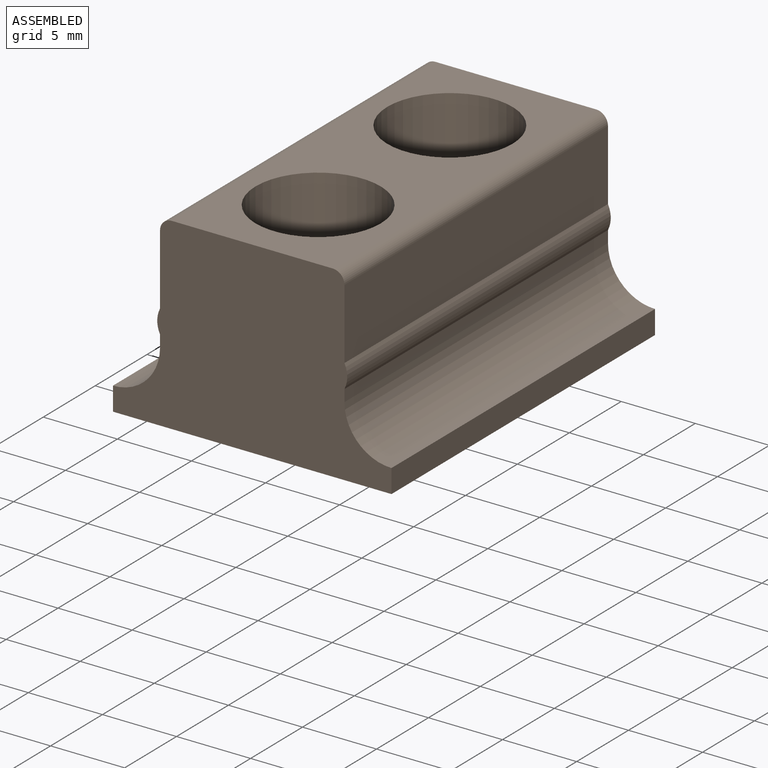
[diagram: assembled view]
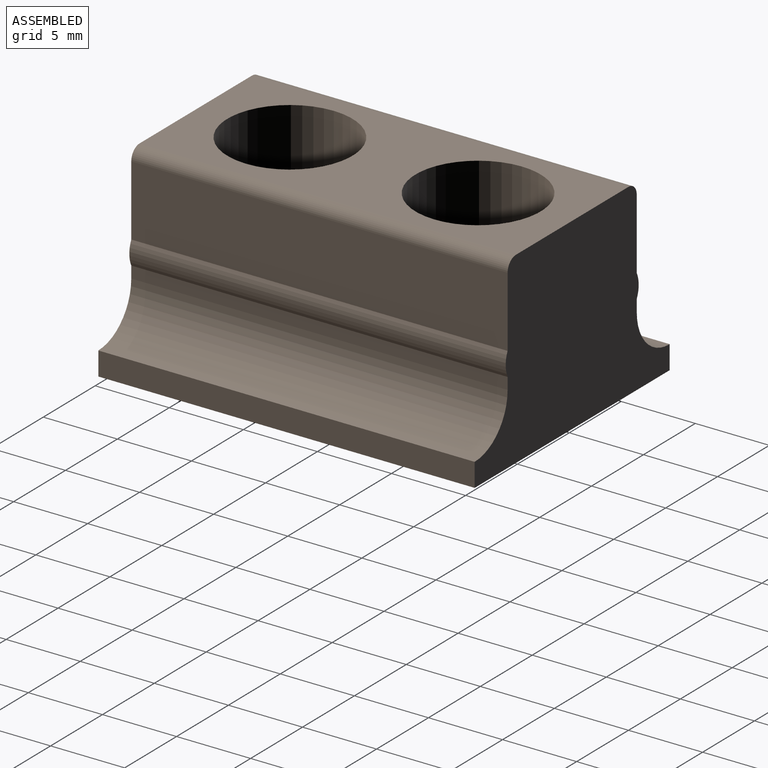
[diagram: assembled view, second angle]
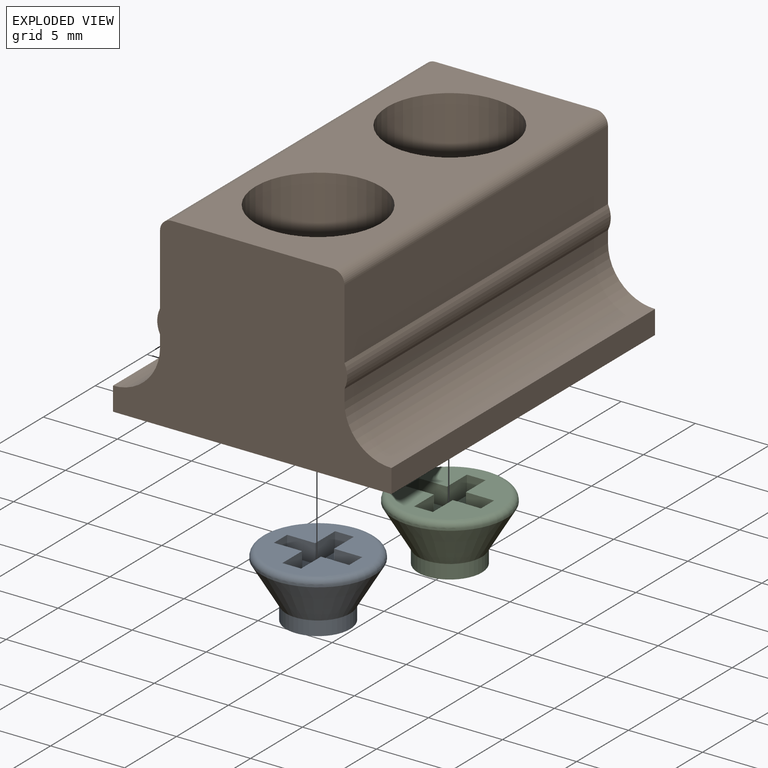
[diagram: exploded view]
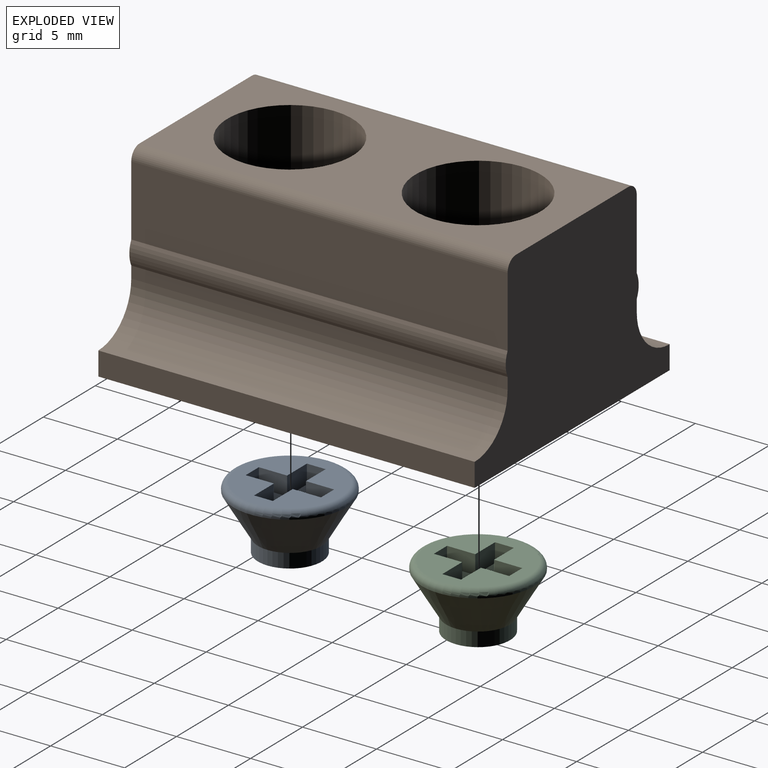
[diagram: exploded view, second angle]
ASSEMBLY  parts=3 mates=2
PART A: 19 faces, bbox 8.2x8.2x4.3 mm
  f0: plane 6.83x6.83mm, normal (0,0,1), area 25.3mm2, adj f5,f6,f7,f8,f9,f10,f11,f12
  f1: plane 4.32x4.32mm, normal (0,0,-1), area 14.6mm2, adj f2
  f2: cylinder r=2.16mm len=4.32mm, axis (0,0,-1), area 12.9mm2, adj f1,f3
  f3: cone r=3.81mm half-angle=30.6deg, axis (0,0,1), area 60.9mm2, adj f2,f4
  f4: cylinder r=3.81mm len=7.62mm, axis (0,0,-1), area 2.7mm2, adj f3,f18
  f5: plane 1.91x1.27mm, normal (1,0,0), area 2.4mm2, adj f0,f6,f16,f17
  f6: plane 1.91x1.27mm, normal (0,-1,0), area 2.4mm2, adj f0,f5,f7,f17
  f7: plane 1.27x1.27mm, normal (1,0,0), area 1.6mm2, adj f0,f6,f8,f17
  f8: plane 1.91x1.27mm, normal (0,1,0), area 2.4mm2, adj f0,f7,f9,f17
  f9: plane 1.91x1.27mm, normal (1,0,0), area 2.4mm2, adj f0,f8,f10,f17
  f10: plane 1.27x1.27mm, normal (0,1,0), area 1.6mm2, adj f0,f9,f11,f17
  f11: plane 1.91x1.27mm, normal (-1,0,0), area 2.4mm2, adj f0,f10,f12,f17
  f12: plane 1.91x1.27mm, normal (0,1,0), area 2.4mm2, adj f0,f11,f13,f17
  f13: plane 1.27x1.27mm, normal (-1,0,0), area 1.6mm2, adj f0,f12,f14,f17
  f14: plane 1.91x1.27mm, normal (0,-1,0), area 2.4mm2, adj f0,f13,f15,f17
  f15: plane 1.91x1.27mm, normal (-1,0,0), area 2.4mm2, adj f0,f14,f16,f17
  f16: plane 1.27x1.27mm, normal (0,-1,0), area 1.6mm2, adj f0,f5,f15,f17
  f17: plane 5.08x5.08mm, normal (0,0,1), area 11.3mm2, adj f5,f6,f7,f8,f9,f10,f11,f12
  f18: torus R=3.41mm, axis (0,0,-1), area 14.4mm2, adj f0,f4
PART B: 22 faces, bbox 18.8x25.4x12.7 mm
  f0: cylinder r=2.29mm len=4.57mm, axis (0,0,1), area 17.3mm2, adj f1,f12
  f1: cone r=4.23mm half-angle=28.6deg, axis (0,0,1), area 82.9mm2, adj f0,f2
  f2: cylinder r=4.23mm len=8.45mm, axis (0,0,1), area 210.7mm2, adj f1,f6
  f3: plane 25.4x0.79mm, normal (1,0,0), area 20.2mm2, adj f4,f14,f15,f16
  f4: cylinder r=1.77mm len=25.4mm, axis (0,1,0), area 41.8mm2, adj f3,f5,f15,f16
  f5: plane 25.4x4.76mm, normal (1,0,0), area 121mm2, adj f4,f15,f16,f20
  f6: plane 25.4x10.86mm, normal (0,0,1), area 163.6mm2, adj f2,f15,f16,f19,f20,f21
  f7: plane 25.4x4.76mm, normal (-1,0,0), area 121mm2, adj f8,f15,f16,f21
  f8: cylinder r=1.77mm len=25.4mm, axis (0,1,0), area 41.8mm2, adj f7,f9,f15,f16
  f9: plane 25.4x0.79mm, normal (-1,0,0), area 20.2mm2, adj f8,f10,f15,f16
  f10: cylinder r=3.17mm len=25.4mm, axis (0,1,0), area 126.7mm2, adj f9,f11,f15,f16
  f11: plane 25.4x1.59mm, normal (-1,0,0), area 40.3mm2, adj f10,f12,f15,f16
  f12: plane 25.4x18.8mm, normal (0,0,-1), area 444.6mm2, adj f0,f11,f13,f15,f16,f17
  f13: plane 25.4x1.59mm, normal (1,0,0), area 40.3mm2, adj f12,f14,f15,f16
  f14: cylinder r=3.17mm len=25.4mm, axis (0,1,0), area 126.7mm2, adj f3,f13,f15,f16
  f15: plane 18.8x12.7mm, normal (0,-1,0), area 172.6mm2, adj f3,f4,f5,f6,f7,f8,f9,f10
  f16: plane 18.8x12.7mm, normal (0,1,0), area 172.6mm2, adj f3,f4,f5,f6,f7,f8,f9,f10
  f17: cylinder r=2.29mm len=4.57mm, axis (0,0,1), area 17.3mm2, adj f12,f18
  f18: cone r=4.23mm half-angle=28.6deg, axis (0,0,1), area 82.9mm2, adj f17,f19
  f19: cylinder r=4.23mm len=8.45mm, axis (0,0,1), area 210.7mm2, adj f6,f18
  f20: cylinder r=0.79mm len=25.4mm, axis (0,-1,0), area 31.7mm2, adj f5,f6,f15,f16
  f21: cylinder r=0.79mm len=25.4mm, axis (0,1,0), area 31.7mm2, adj f6,f7,f15,f16
PART C: same geometry as A
PLACE A t=(0,-6.35,0)mm
PLACE B t=(0,-6.35,0)mm
PLACE C t=(0,6.35,0)mm
MATE fastened A.f2 <-> B.f17  axis (0,0,-1) through (0,-6.35,0)mm
MATE fastened B.f0 <-> C.f2  axis (0,0,-1) through (0,6.35,0)mm
